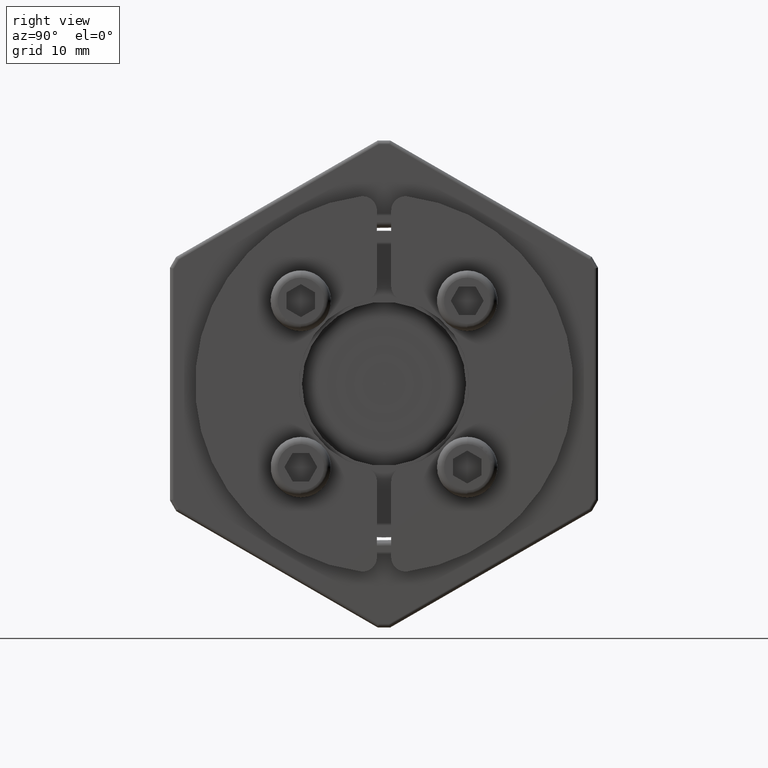
[diagram: clean part render]
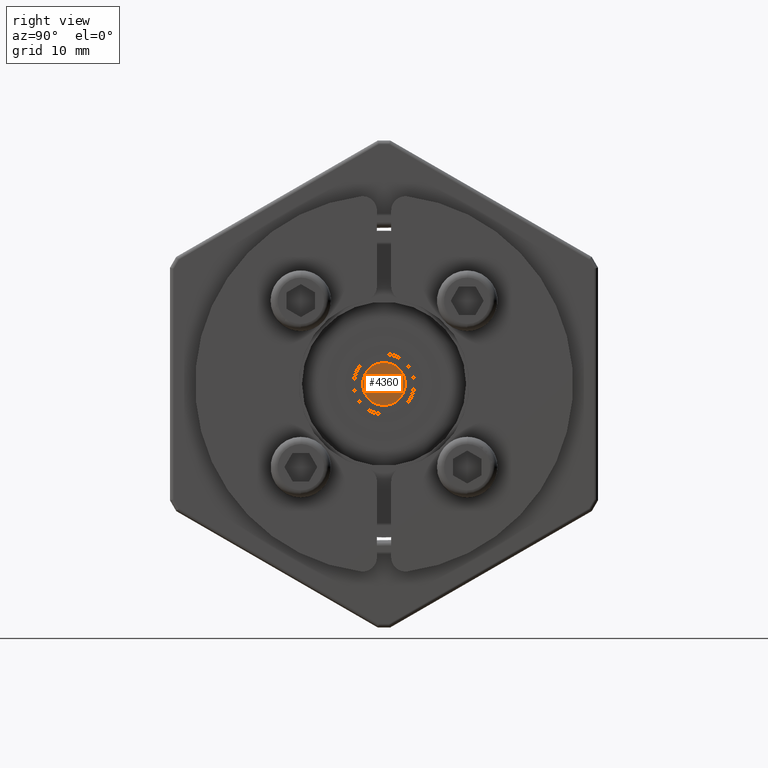
[diagram: same view with one face highlighted and labeled with its STEP entity id]
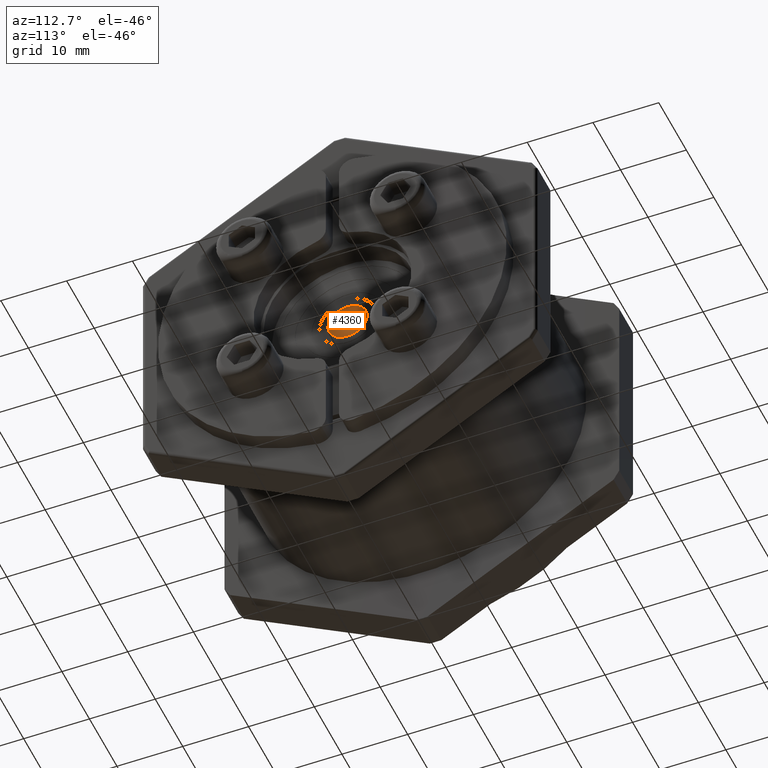
[diagram: same view with one face highlighted and labeled with its STEP entity id]
A machine part, right view. The second image highlights one B-rep face of the part: STEP entity #4360.
A second angle (auxiliary view) of the same face is appended — the face is thin or edge-on in the first view.
In plain terms, the highlighted planar face has unit normal (-1, 0, 0).
Its self-contained STEP definition (entity closure, byte-faithful):
#738=CARTESIAN_POINT('',(15.700000000000003,-3.000000000000000,3.673819E-016));
#739=VERTEX_POINT('',#738);
#755=CARTESIAN_POINT('',(15.700000000000003,3.000000000000000,3.673819E-016));
#756=VERTEX_POINT('',#755);
#763=CARTESIAN_POINT('',(15.700000000000003,0.0,0.0));
#764=DIRECTION('',(-1.0,0.0,0.0));
#765=DIRECTION('',(0.0,-1.0,0.0));
#766=AXIS2_PLACEMENT_3D('',#763,#764,#765);
#767=CIRCLE('',#766,3.000000000000000);
#768=EDGE_CURVE('',#756,#739,#767,.T.);
#4345=CARTESIAN_POINT('',(15.700000000000003,0.0,0.0));
#4346=DIRECTION('',(-1.0,0.0,0.0));
#4347=DIRECTION('',(0.0,0.0,1.0));
#4348=AXIS2_PLACEMENT_3D('',#4345,#4346,#4347);
#4349=PLANE('',#4348);
#4350=ORIENTED_EDGE('',*,*,#768,.F.);
#4351=CARTESIAN_POINT('',(15.700000000000003,0.0,0.0));
#4352=DIRECTION('',(-1.0,0.0,0.0));
#4353=DIRECTION('',(0.0,-1.0,0.0));
#4354=AXIS2_PLACEMENT_3D('',#4351,#4352,#4353);
#4355=CIRCLE('',#4354,3.000000000000000);
#4356=EDGE_CURVE('',#739,#756,#4355,.T.);
#4357=ORIENTED_EDGE('',*,*,#4356,.F.);
#4358=EDGE_LOOP('',(#4350,#4357));
#4359=FACE_OUTER_BOUND('',#4358,.T.);
#4360=ADVANCED_FACE('',(#4359),#4349,.F.);